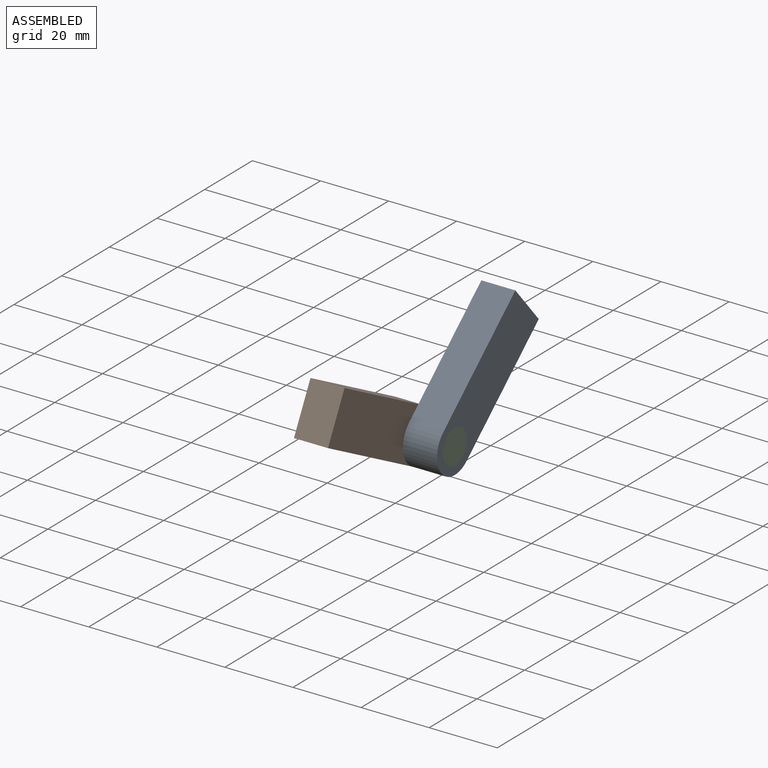
[diagram: assembled view]
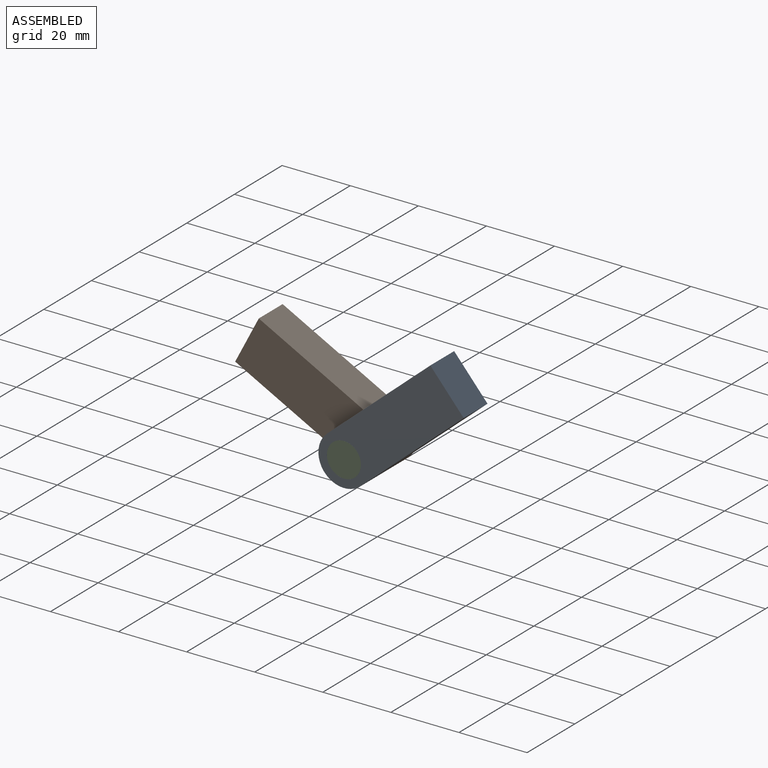
[diagram: assembled view, second angle]
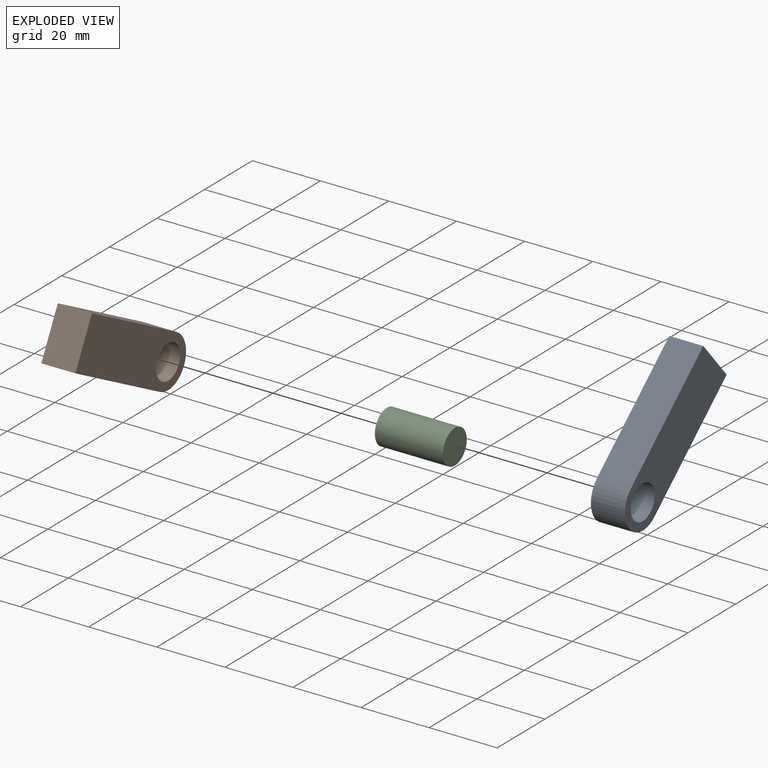
[diagram: exploded view]
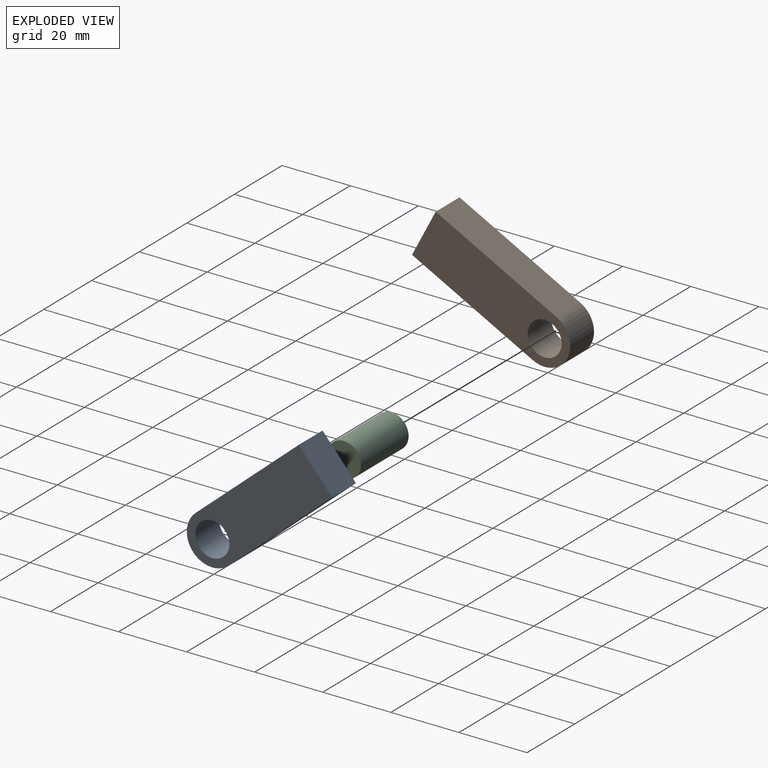
[diagram: exploded view, second angle]
ASSEMBLY  parts=3 mates=2
PART A: 7 faces, bbox 10x47.5x15 mm
  f0: plane 40x10mm, normal (0,0,-1), area 400mm2, adj f1,f3,f5,f6
  f1: cylinder r=7.5mm len=15mm, axis (-1,0,0), area 235.6mm2, adj f0,f2,f5,f6
  f2: plane 40x10mm, normal (0,0,1), area 400mm2, adj f1,f3,f5,f6
  f3: plane 15x10mm, normal (0,-1,0), area 150mm2, adj f0,f2,f5,f6
  f4: cylinder r=5mm len=10mm, axis (-1,0,0), area 314.2mm2, adj f5,f6
  f5: plane 47.5x15mm, normal (1,0,0), area 609.8mm2, adj f0,f1,f2,f3,f4
  f6: plane 47.5x15mm, normal (-1,0,0), area 609.8mm2, adj f0,f1,f2,f3,f4
PART B: same geometry as A
PART C: 3 faces, bbox 20x10x10 mm
  f0: cylinder r=5mm len=20mm, axis (-1,0,0), area 628.3mm2, adj f1,f2
  f1: plane 10x10mm, normal (1,0,0), area 78.5mm2, adj f0
  f2: plane 10x10mm, normal (-1,0,0), area 78.5mm2, adj f0
PLACE A rot(axis=(-1,0,0),139.2deg) t=(-5.85,-0.9,-19.54)mm
PLACE B rot(axis=(-1,0,0),27.5deg) t=(-15.85,-0.9,-19.54)mm
PLACE C t=(-15.85,-30.06,-59.78)mm fixed
MATE revolute C.f0 <-> B.f4  axis (-1,0,0) through (-15.85,-0.9,-19.54)mm
MATE revolute A.f4 <-> C.f0  axis (1,0,0) through (4.15,-0.9,-19.54)mm
